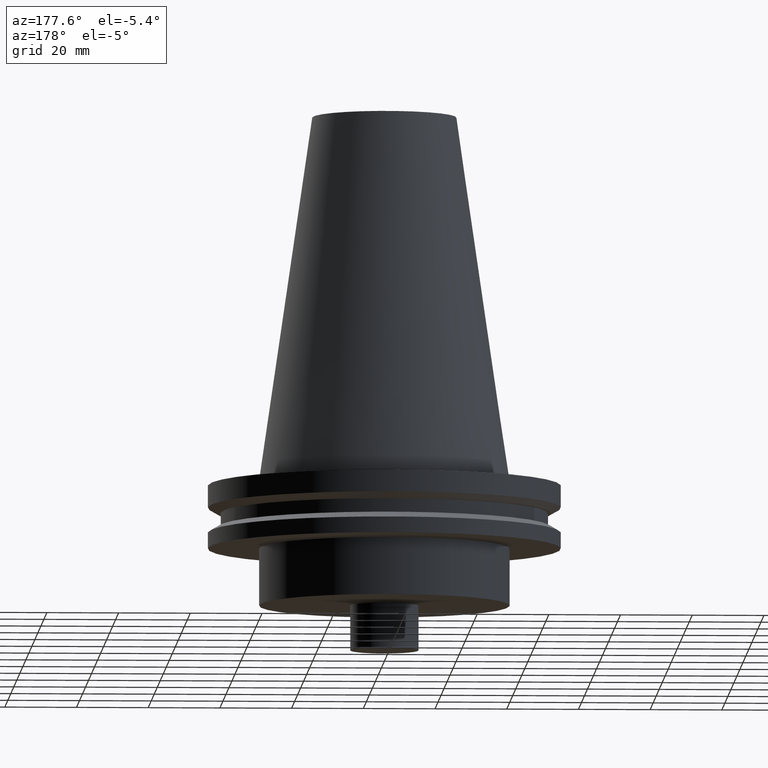
[diagram: clean part render]
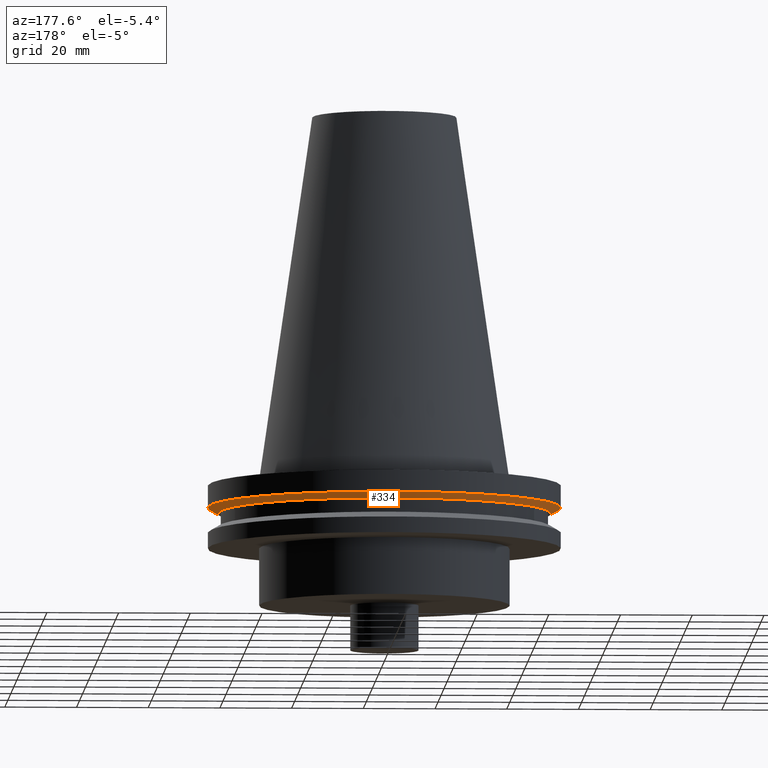
[diagram: same view with one face highlighted and labeled with its STEP entity id]
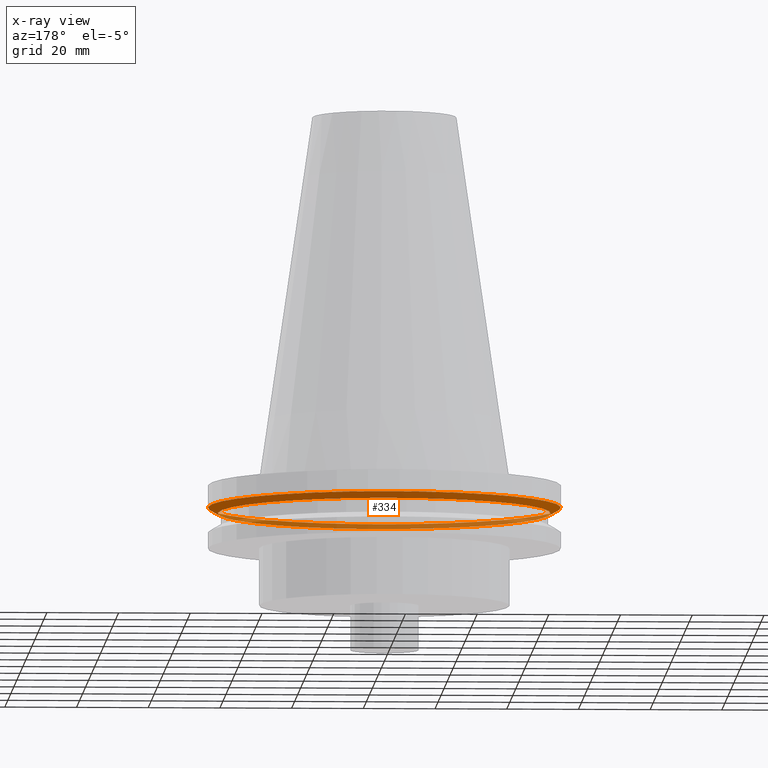
[diagram: x-ray of the same camera — body ghosted, the highlighted face saturated]
A machine part, auxiliary view. The second image highlights one B-rep face of the part: STEP entity #334.
The next image is the same camera in x-ray: the body ghosted, the highlighted face saturated — about 37% of this face is hidden behind the body in this view.
In plain terms, the highlighted conical surface has half-angle 60 deg.
Its self-contained STEP definition (entity closure, byte-faithful):
#3 = DIRECTION ( 'NONE',  ( 1.000000000000000000, 0.000000000000000000, 0.000000000000000000 ) ) ;
#29 = DIRECTION ( 'NONE',  ( -0.000000000000000000, -0.000000000000000000, 1.000000000000000000 ) ) ;
#30 = AXIS2_PLACEMENT_3D ( 'NONE', #46, #169, #3 ) ;
#40 = FACE_BOUND ( 'NONE', #125, .T. ) ;
#46 = CARTESIAN_POINT ( 'NONE',  ( 0.000000000000000000, 0.000000000000000000, -9.204999999999991189 ) ) ;
#65 = CARTESIAN_POINT ( 'NONE',  ( 0.000000000000000000, 0.000000000000000000, -9.204999999999991189 ) ) ;
#67 = DIRECTION ( 'NONE',  ( 1.000000000000000000, 0.000000000000000000, 0.000000000000000000 ) ) ;
#74 = ORIENTED_EDGE ( 'NONE', *, *, #79, .T. ) ;
#79 = EDGE_CURVE ( 'NONE', #250, #250, #153, .T. ) ;
#87 = AXIS2_PLACEMENT_3D ( 'NONE', #209, #29, #152 ) ;
#106 = EDGE_LOOP ( 'NONE', ( #283 ) ) ;
#122 = VERTEX_POINT ( 'NONE', #181 ) ;
#125 = EDGE_LOOP ( 'NONE', ( #74 ) ) ;
#152 = DIRECTION ( 'NONE',  ( 1.000000000000000000, 0.000000000000000000, 0.000000000000000000 ) ) ;
#153 = CIRCLE ( 'NONE', #30, 46.43919780457007818 ) ;
#161 = CIRCLE ( 'NONE', #87, 49.21500000000000341 ) ;
#169 = DIRECTION ( 'NONE',  ( -0.000000000000000000, -0.000000000000000000, 1.000000000000000000 ) ) ;
#181 = CARTESIAN_POINT ( 'NONE',  ( 49.21500000000000341, 0.000000000000000000, -7.602389855251287187 ) ) ;
#209 = CARTESIAN_POINT ( 'NONE',  ( 0.000000000000000000, 0.000000000000000000, -7.602389855251287187 ) ) ;
#212 = EDGE_CURVE ( 'NONE', #122, #122, #161, .T. ) ;
#250 = VERTEX_POINT ( 'NONE', #279 ) ;
#279 = CARTESIAN_POINT ( 'NONE',  ( 46.43919780457007818, 0.000000000000000000, -9.204999999999991189 ) ) ;
#283 = ORIENTED_EDGE ( 'NONE', *, *, #212, .F. ) ;
#334 = ADVANCED_FACE ( 'NONE', ( #336, #40 ), #353, .T. ) ;
#336 = FACE_OUTER_BOUND ( 'NONE', #106, .T. ) ;
#353 = CONICAL_SURFACE ( 'NONE', #366, 46.43919780457007818, 1.047197551196575205 ) ;
#361 = DIRECTION ( 'NONE',  ( -0.000000000000000000, -0.000000000000000000, 1.000000000000000000 ) ) ;
#366 = AXIS2_PLACEMENT_3D ( 'NONE', #65, #361, #67 ) ;